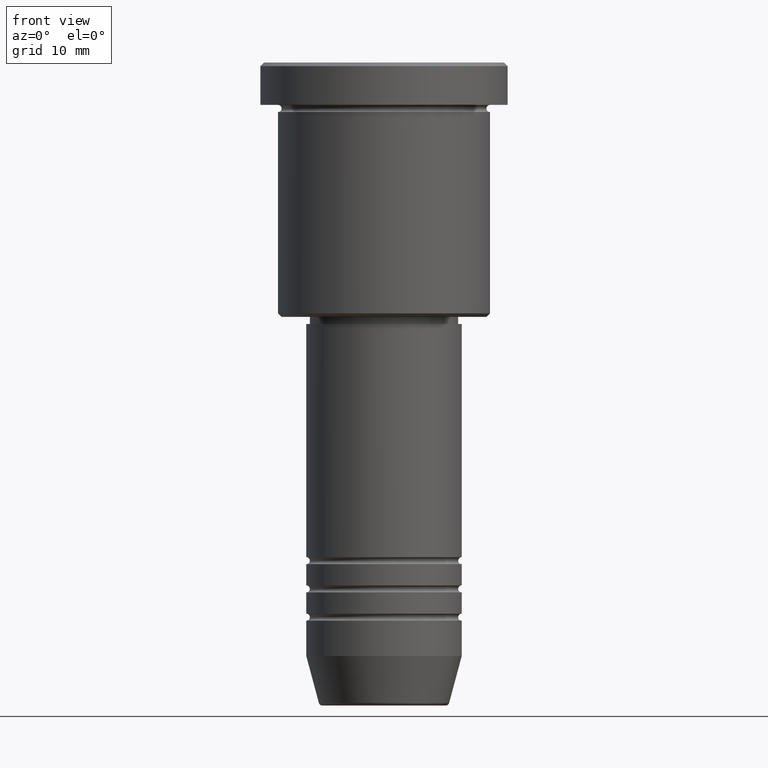
[diagram: clean part render]
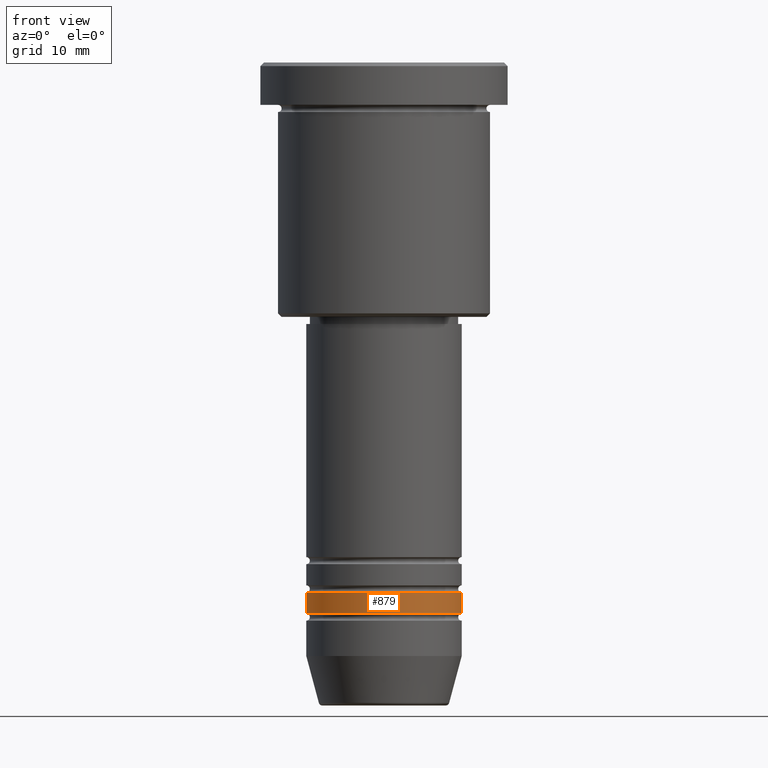
[diagram: same view with one face highlighted and labeled with its STEP entity id]
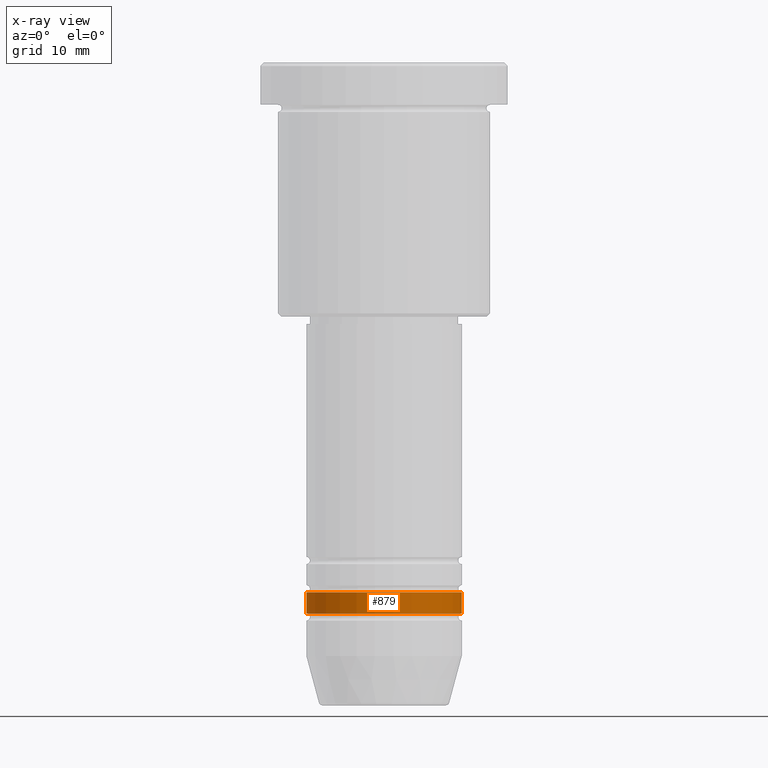
[diagram: x-ray of the same camera — body ghosted, the highlighted face saturated]
A machine part, front view. The second image highlights one B-rep face of the part: STEP entity #879.
The next image is the same camera in x-ray: the body ghosted, the highlighted face saturated — about 0% of this face is hidden behind the body in this view.
In plain terms, the highlighted cylindrical surface (partial cylindrical patch) has radius 11 mm, axis along (-0, -0, 1).
Its self-contained STEP definition (entity closure, byte-faithful):
#24 = DIRECTION ( 'NONE',  ( -0.000000000000000000, -0.000000000000000000, 1.000000000000000000 ) ) ;
#90 = CYLINDRICAL_SURFACE ( 'NONE', #400, 11.00000000000000000 ) ;
#127 = CARTESIAN_POINT ( 'NONE',  ( 11.00000000000000000, 0.000000000000000000, 0.000000000000000000 ) ) ;
#133 = DIRECTION ( 'NONE',  ( 1.000000000000000000, 0.000000000000000000, 0.000000000000000000 ) ) ;
#177 = DIRECTION ( 'NONE',  ( 1.000000000000000000, 0.000000000000000000, 0.000000000000000000 ) ) ;
#243 = DIRECTION ( 'NONE',  ( -0.000000000000000000, -0.000000000000000000, 1.000000000000000000 ) ) ;
#259 = CARTESIAN_POINT ( 'NONE',  ( 0.000000000000000000, 0.000000000000000000, 0.000000000000000000 ) ) ;
#288 = CARTESIAN_POINT ( 'NONE',  ( 11.00000000000000000, 0.000000000000000000, -77.99999999999987210 ) ) ;
#316 = CARTESIAN_POINT ( 'NONE',  ( -11.00000000000000000, 1.347111479062088405E-15, -74.99999999999987210 ) ) ;
#330 = ORIENTED_EDGE ( 'NONE', *, *, #410, .F. ) ;
#333 = VERTEX_POINT ( 'NONE', #316 ) ;
#374 = DIRECTION ( 'NONE',  ( 1.000000000000000000, 0.000000000000000000, 0.000000000000000000 ) ) ;
#384 = DIRECTION ( 'NONE',  ( -0.000000000000000000, -0.000000000000000000, 1.000000000000000000 ) ) ;
#400 = AXIS2_PLACEMENT_3D ( 'NONE', #259, #998, #177 ) ;
#410 = EDGE_CURVE ( 'NONE', #820, #333, #877, .T. ) ;
#420 = ORIENTED_EDGE ( 'NONE', *, *, #552, .T. ) ;
#431 = ORIENTED_EDGE ( 'NONE', *, *, #469, .T. ) ;
#469 = EDGE_CURVE ( 'NONE', #1056, #853, #947, .T. ) ;
#501 = CIRCLE ( 'NONE', #650, 11.00000000000000000 ) ;
#549 = EDGE_LOOP ( 'NONE', ( #330, #420, #431, #636 ) ) ;
#550 = CARTESIAN_POINT ( 'NONE',  ( -11.00000000000000000, 1.347111479062088405E-15, -77.99999999999987210 ) ) ;
#552 = EDGE_CURVE ( 'NONE', #820, #1056, #577, .T. ) ;
#563 = CARTESIAN_POINT ( 'NONE',  ( 0.000000000000000000, 0.000000000000000000, -77.99999999999987210 ) ) ;
#577 = CIRCLE ( 'NONE', #1073, 11.00000000000000000 ) ;
#619 = EDGE_CURVE ( 'NONE', #333, #853, #501, .T. ) ;
#629 = CARTESIAN_POINT ( 'NONE',  ( 11.00000000000000000, 0.000000000000000000, -74.99999999999987210 ) ) ;
#636 = ORIENTED_EDGE ( 'NONE', *, *, #619, .F. ) ;
#650 = AXIS2_PLACEMENT_3D ( 'NONE', #953, #682, #133 ) ;
#682 = DIRECTION ( 'NONE',  ( -0.000000000000000000, -0.000000000000000000, 1.000000000000000000 ) ) ;
#693 = VECTOR ( 'NONE', #384, 1000.000000000000000 ) ;
#820 = VERTEX_POINT ( 'NONE', #550 ) ;
#853 = VERTEX_POINT ( 'NONE', #629 ) ;
#877 = LINE ( 'NONE', #973, #992 ) ;
#879 = ADVANCED_FACE ( 'NONE', ( #1090 ), #90, .T. ) ;
#947 = LINE ( 'NONE', #127, #693 ) ;
#953 = CARTESIAN_POINT ( 'NONE',  ( 0.000000000000000000, 0.000000000000000000, -74.99999999999987210 ) ) ;
#973 = CARTESIAN_POINT ( 'NONE',  ( -11.00000000000000000, 1.347111479062088405E-15, 0.000000000000000000 ) ) ;
#992 = VECTOR ( 'NONE', #243, 1000.000000000000000 ) ;
#998 = DIRECTION ( 'NONE',  ( -0.000000000000000000, -0.000000000000000000, 1.000000000000000000 ) ) ;
#1056 = VERTEX_POINT ( 'NONE', #288 ) ;
#1073 = AXIS2_PLACEMENT_3D ( 'NONE', #563, #24, #374 ) ;
#1090 = FACE_OUTER_BOUND ( 'NONE', #549, .T. ) ;